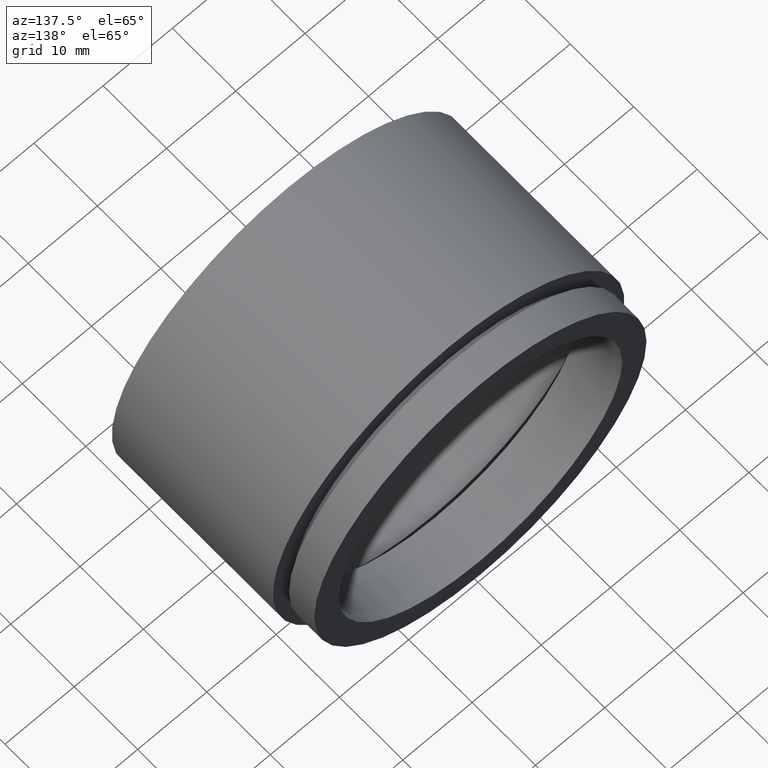
[diagram: clean part render]
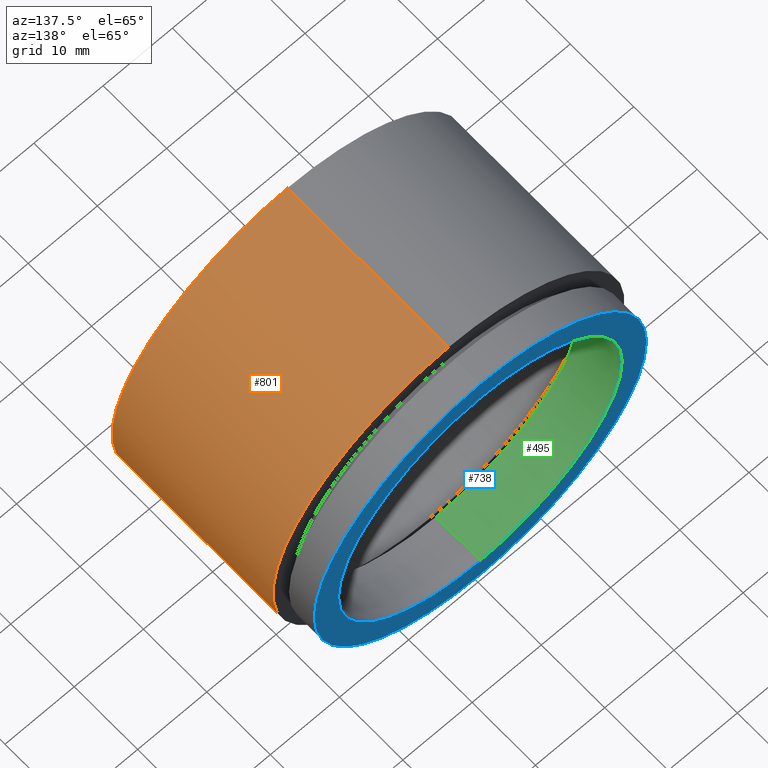
[diagram: same view with three faces highlighted in distinct colors, each labeled with its STEP entity id]
A machine part, auxiliary view with three faces highlighted in distinct colors.
Their STEP definitions:

[orange] entity #801 — the highlighted cylindrical surface (partial cylindrical patch) has radius 25.4 mm, axis along (-0, 1, -0).
#14 = CARTESIAN_POINT ( 'NONE',  ( 0.0000000000000000000, -2.775557561562891400E-014, 25.40000000000002000 ) ) ;
#15 = DIRECTION ( 'NONE',  ( 0.0000000000000000000, 0.0000000000000000000, 1.000000000000000000 ) ) ;
#40 = CYLINDRICAL_SURFACE ( 'NONE', #356, 25.40000000000001300 ) ;
#62 = EDGE_LOOP ( 'NONE', ( #378, #472, #90, #192 ) ) ;
#69 = AXIS2_PLACEMENT_3D ( 'NONE', #700, #768, #624 ) ;
#74 = CARTESIAN_POINT ( 'NONE',  ( 0.0000000000000000000, 161.3761669434274500, 25.40000000000001300 ) ) ;
#81 = EDGE_CURVE ( 'NONE', #431, #755, #163, .T. ) ;
#90 = ORIENTED_EDGE ( 'NONE', *, *, #443, .F. ) ;
#95 = EDGE_CURVE ( 'NONE', #689, #691, #743, .T. ) ;
#119 = AXIS2_PLACEMENT_3D ( 'NONE', #790, #724, #793 ) ;
#150 = CARTESIAN_POINT ( 'NONE',  ( 3.110602869834278000E-015, 25.39999999999997700, -25.40000000000000900 ) ) ;
#163 = LINE ( 'NONE', #193, #391 ) ;
#190 = EDGE_CURVE ( 'NONE', #689, #431, #354, .T. ) ;
#192 = ORIENTED_EDGE ( 'NONE', *, *, #95, .F. ) ;
#193 = CARTESIAN_POINT ( 'NONE',  ( 3.110602869834278400E-015, 161.3761669434274500, -25.40000000000001300 ) ) ;
#214 = FACE_OUTER_BOUND ( 'NONE', #62, .T. ) ;
#341 = CARTESIAN_POINT ( 'NONE',  ( 0.0000000000000000000, 161.3761669434274500, 0.0000000000000000000 ) ) ;
#354 = CIRCLE ( 'NONE', #69, 25.40000000000002000 ) ;
#356 = AXIS2_PLACEMENT_3D ( 'NONE', #341, #398, #15 ) ;
#378 = ORIENTED_EDGE ( 'NONE', *, *, #190, .T. ) ;
#391 = VECTOR ( 'NONE', #455, 1000.000000000000000 ) ;
#394 = CIRCLE ( 'NONE', #119, 25.40000000000000900 ) ;
#398 = DIRECTION ( 'NONE',  ( -0.0000000000000000000, 1.000000000000000000, -0.0000000000000000000 ) ) ;
#431 = VERTEX_POINT ( 'NONE', #592 ) ;
#443 = EDGE_CURVE ( 'NONE', #691, #755, #394, .T. ) ;
#455 = DIRECTION ( 'NONE',  ( -0.0000000000000000000, 1.000000000000000000, -0.0000000000000000000 ) ) ;
#472 = ORIENTED_EDGE ( 'NONE', *, *, #81, .T. ) ;
#507 = CARTESIAN_POINT ( 'NONE',  ( 0.0000000000000000000, 25.39999999999997700, 25.40000000000000900 ) ) ;
#592 = CARTESIAN_POINT ( 'NONE',  ( 3.110602869834279200E-015, -2.775557561562891400E-014, -25.40000000000002000 ) ) ;
#619 = DIRECTION ( 'NONE',  ( -0.0000000000000000000, 1.000000000000000000, -0.0000000000000000000 ) ) ;
#624 = DIRECTION ( 'NONE',  ( 0.0000000000000000000, 0.0000000000000000000, 1.000000000000000000 ) ) ;
#689 = VERTEX_POINT ( 'NONE', #14 ) ;
#691 = VERTEX_POINT ( 'NONE', #507 ) ;
#700 = CARTESIAN_POINT ( 'NONE',  ( 0.0000000000000000000, -2.775557561562891400E-014, 0.0000000000000000000 ) ) ;
#723 = VECTOR ( 'NONE', #619, 1000.000000000000000 ) ;
#724 = DIRECTION ( 'NONE',  ( -0.0000000000000000000, 1.000000000000000000, -0.0000000000000000000 ) ) ;
#743 = LINE ( 'NONE', #74, #723 ) ;
#755 = VERTEX_POINT ( 'NONE', #150 ) ;
#768 = DIRECTION ( 'NONE',  ( -0.0000000000000000000, 1.000000000000000000, -0.0000000000000000000 ) ) ;
#790 = CARTESIAN_POINT ( 'NONE',  ( 0.0000000000000000000, 25.39999999999997700, 0.0000000000000000000 ) ) ;
#793 = DIRECTION ( 'NONE',  ( 0.0000000000000000000, 0.0000000000000000000, 1.000000000000000000 ) ) ;
#801 = ADVANCED_FACE ( 'NONE', ( #214 ), #40, .T. ) ;

[blue] entity #738 — the highlighted planar face has unit normal (0, -1, 0).
#8 = VERTEX_POINT ( 'NONE', #685 ) ;
#26 = AXIS2_PLACEMENT_3D ( 'NONE', #234, #741, #426 ) ;
#30 = CARTESIAN_POINT ( 'NONE',  ( 0.0000000000000000000, 30.39999999999998400, 0.0000000000000000000 ) ) ;
#34 = CIRCLE ( 'NONE', #106, 20.50000000000001400 ) ;
#41 = ORIENTED_EDGE ( 'NONE', *, *, #499, .F. ) ;
#50 = EDGE_CURVE ( 'NONE', #421, #8, #34, .T. ) ;
#106 = AXIS2_PLACEMENT_3D ( 'NONE', #762, #393, #564 ) ;
#110 = EDGE_LOOP ( 'NONE', ( #423, #606 ) ) ;
#126 = ORIENTED_EDGE ( 'NONE', *, *, #50, .F. ) ;
#135 = FACE_BOUND ( 'NONE', #645, .T. ) ;
#145 = DIRECTION ( 'NONE',  ( -0.0000000000000000000, 1.000000000000000000, -0.0000000000000000000 ) ) ;
#170 = EDGE_CURVE ( 'NONE', #804, #259, #561, .T. ) ;
#173 = DIRECTION ( 'NONE',  ( 0.0000000000000000000, 0.0000000000000000000, 1.000000000000000000 ) ) ;
#174 = CARTESIAN_POINT ( 'NONE',  ( 2.510525938252075700E-015, 30.39999999999998400, -20.50000000000001400 ) ) ;
#234 = CARTESIAN_POINT ( 'NONE',  ( 0.0000000000000000000, 30.39999999999998400, 0.0000000000000000000 ) ) ;
#257 = FACE_OUTER_BOUND ( 'NONE', #110, .T. ) ;
#259 = VERTEX_POINT ( 'NONE', #529 ) ;
#291 = CIRCLE ( 'NONE', #556, 24.00000000000001400 ) ;
#342 = CIRCLE ( 'NONE', #26, 20.50000000000001400 ) ;
#393 = DIRECTION ( 'NONE',  ( -0.0000000000000000000, 1.000000000000000000, -0.0000000000000000000 ) ) ;
#397 = AXIS2_PLACEMENT_3D ( 'NONE', #528, #777, #646 ) ;
#415 = EDGE_CURVE ( 'NONE', #259, #804, #291, .T. ) ;
#421 = VERTEX_POINT ( 'NONE', #174 ) ;
#423 = ORIENTED_EDGE ( 'NONE', *, *, #170, .T. ) ;
#426 = DIRECTION ( 'NONE',  ( 0.0000000000000000000, 0.0000000000000000000, 1.000000000000000000 ) ) ;
#499 = EDGE_CURVE ( 'NONE', #8, #421, #342, .T. ) ;
#514 = CARTESIAN_POINT ( 'NONE',  ( 0.0000000000000000000, 30.39999999999998400, 0.0000000000000000000 ) ) ;
#515 = CARTESIAN_POINT ( 'NONE',  ( 0.0000000000000000000, 30.39999999999998400, 24.00000000000001400 ) ) ;
#528 = CARTESIAN_POINT ( 'NONE',  ( 20.50000000000001400, 30.39999999999997700, 0.0000000000000000000 ) ) ;
#529 = CARTESIAN_POINT ( 'NONE',  ( 2.939152317953649500E-015, 30.39999999999998400, -24.00000000000001400 ) ) ;
#556 = AXIS2_PLACEMENT_3D ( 'NONE', #30, #788, #173 ) ;
#561 = CIRCLE ( 'NONE', #756, 24.00000000000001400 ) ;
#564 = DIRECTION ( 'NONE',  ( 0.0000000000000000000, 0.0000000000000000000, 1.000000000000000000 ) ) ;
#575 = DIRECTION ( 'NONE',  ( 0.0000000000000000000, 0.0000000000000000000, 1.000000000000000000 ) ) ;
#606 = ORIENTED_EDGE ( 'NONE', *, *, #415, .T. ) ;
#640 = PLANE ( 'NONE',  #397 ) ;
#645 = EDGE_LOOP ( 'NONE', ( #41, #126 ) ) ;
#646 = DIRECTION ( 'NONE',  ( 0.0000000000000000000, -0.0000000000000000000, -1.000000000000000000 ) ) ;
#685 = CARTESIAN_POINT ( 'NONE',  ( 0.0000000000000000000, 30.39999999999998400, 20.50000000000001400 ) ) ;
#738 = ADVANCED_FACE ( 'NONE', ( #135, #257 ), #640, .F. ) ;
#741 = DIRECTION ( 'NONE',  ( -0.0000000000000000000, 1.000000000000000000, -0.0000000000000000000 ) ) ;
#756 = AXIS2_PLACEMENT_3D ( 'NONE', #514, #145, #575 ) ;
#762 = CARTESIAN_POINT ( 'NONE',  ( 0.0000000000000000000, 30.39999999999998400, 0.0000000000000000000 ) ) ;
#777 = DIRECTION ( 'NONE',  ( 0.0000000000000000000, -1.000000000000000000, 0.0000000000000000000 ) ) ;
#788 = DIRECTION ( 'NONE',  ( -0.0000000000000000000, 1.000000000000000000, -0.0000000000000000000 ) ) ;
#804 = VERTEX_POINT ( 'NONE', #515 ) ;

[green] entity #495 — the highlighted cylindrical surface (partial cylindrical patch) has radius 20.5 mm, axis along (-0, 1, -0).
#8 = VERTEX_POINT ( 'NONE', #685 ) ;
#10 = CARTESIAN_POINT ( 'NONE',  ( 0.0000000000000000000, 23.39999999999997700, 20.50000000000001800 ) ) ;
#19 = ORIENTED_EDGE ( 'NONE', *, *, #787, .F. ) ;
#34 = CIRCLE ( 'NONE', #106, 20.50000000000001400 ) ;
#50 = EDGE_CURVE ( 'NONE', #421, #8, #34, .T. ) ;
#106 = AXIS2_PLACEMENT_3D ( 'NONE', #762, #393, #564 ) ;
#108 = VERTEX_POINT ( 'NONE', #10 ) ;
#139 = CARTESIAN_POINT ( 'NONE',  ( 2.510525938252076100E-015, 23.39999999999997700, -20.50000000000001800 ) ) ;
#143 = FACE_OUTER_BOUND ( 'NONE', #576, .T. ) ;
#146 = LINE ( 'NONE', #344, #251 ) ;
#174 = CARTESIAN_POINT ( 'NONE',  ( 2.510525938252075700E-015, 30.39999999999998400, -20.50000000000001400 ) ) ;
#232 = ORIENTED_EDGE ( 'NONE', *, *, #250, .T. ) ;
#250 = EDGE_CURVE ( 'NONE', #747, #421, #654, .T. ) ;
#251 = VECTOR ( 'NONE', #773, 1000.000000000000000 ) ;
#310 = EDGE_CURVE ( 'NONE', #108, #8, #146, .T. ) ;
#344 = CARTESIAN_POINT ( 'NONE',  ( 0.0000000000000000000, 161.3761669434274500, 20.50000000000001800 ) ) ;
#352 = VECTOR ( 'NONE', #519, 1000.000000000000000 ) ;
#393 = DIRECTION ( 'NONE',  ( -0.0000000000000000000, 1.000000000000000000, -0.0000000000000000000 ) ) ;
#399 = CIRCLE ( 'NONE', #498, 20.50000000000001800 ) ;
#420 = CARTESIAN_POINT ( 'NONE',  ( 0.0000000000000000000, 161.3761669434274500, 0.0000000000000000000 ) ) ;
#421 = VERTEX_POINT ( 'NONE', #174 ) ;
#441 = ORIENTED_EDGE ( 'NONE', *, *, #310, .F. ) ;
#460 = CARTESIAN_POINT ( 'NONE',  ( 0.0000000000000000000, 23.39999999999997700, 0.0000000000000000000 ) ) ;
#494 = AXIS2_PLACEMENT_3D ( 'NONE', #420, #670, #661 ) ;
#495 = ADVANCED_FACE ( 'NONE', ( #143 ), #703, .F. ) ;
#498 = AXIS2_PLACEMENT_3D ( 'NONE', #460, #513, #629 ) ;
#513 = DIRECTION ( 'NONE',  ( -0.0000000000000000000, 1.000000000000000000, -0.0000000000000000000 ) ) ;
#519 = DIRECTION ( 'NONE',  ( -0.0000000000000000000, 1.000000000000000000, -0.0000000000000000000 ) ) ;
#533 = ORIENTED_EDGE ( 'NONE', *, *, #50, .T. ) ;
#564 = DIRECTION ( 'NONE',  ( 0.0000000000000000000, 0.0000000000000000000, 1.000000000000000000 ) ) ;
#576 = EDGE_LOOP ( 'NONE', ( #19, #232, #533, #441 ) ) ;
#629 = DIRECTION ( 'NONE',  ( 0.0000000000000000000, 0.0000000000000000000, 1.000000000000000000 ) ) ;
#654 = LINE ( 'NONE', #719, #352 ) ;
#661 = DIRECTION ( 'NONE',  ( 0.0000000000000000000, 0.0000000000000000000, 1.000000000000000000 ) ) ;
#670 = DIRECTION ( 'NONE',  ( -0.0000000000000000000, 1.000000000000000000, -0.0000000000000000000 ) ) ;
#685 = CARTESIAN_POINT ( 'NONE',  ( 0.0000000000000000000, 30.39999999999998400, 20.50000000000001400 ) ) ;
#703 = CYLINDRICAL_SURFACE ( 'NONE', #494, 20.50000000000001800 ) ;
#719 = CARTESIAN_POINT ( 'NONE',  ( 2.510525938252076100E-015, 161.3761669434274500, -20.50000000000001800 ) ) ;
#747 = VERTEX_POINT ( 'NONE', #139 ) ;
#762 = CARTESIAN_POINT ( 'NONE',  ( 0.0000000000000000000, 30.39999999999998400, 0.0000000000000000000 ) ) ;
#773 = DIRECTION ( 'NONE',  ( -0.0000000000000000000, 1.000000000000000000, -0.0000000000000000000 ) ) ;
#787 = EDGE_CURVE ( 'NONE', #747, #108, #399, .T. ) ;